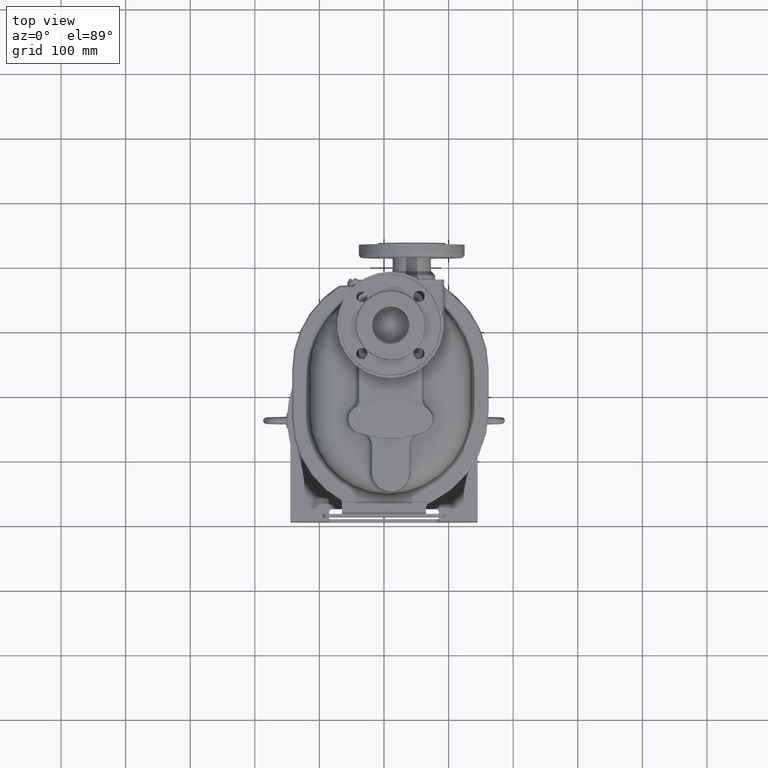
[diagram: clean part render]
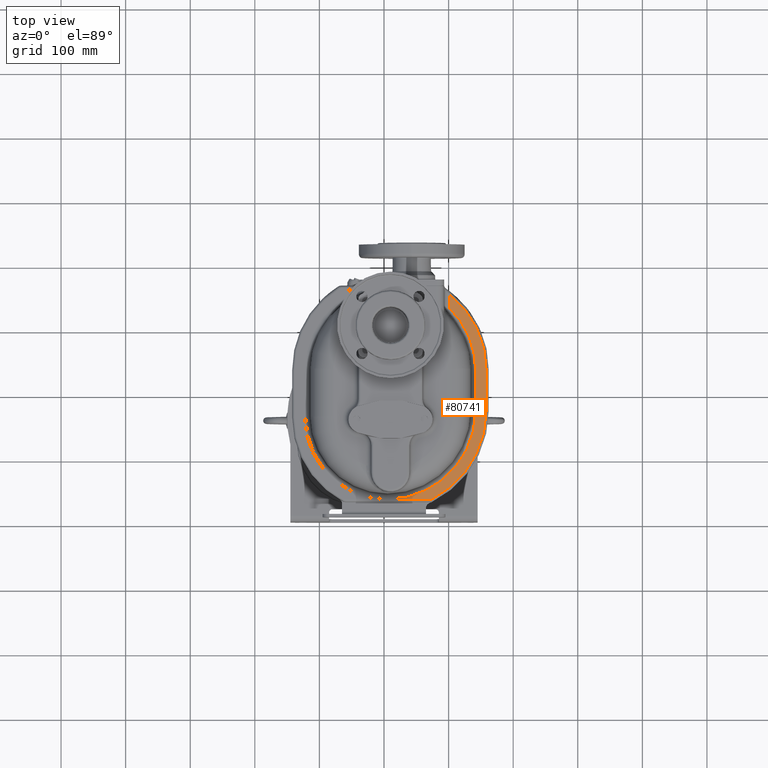
[diagram: same view with one face highlighted and labeled with its STEP entity id]
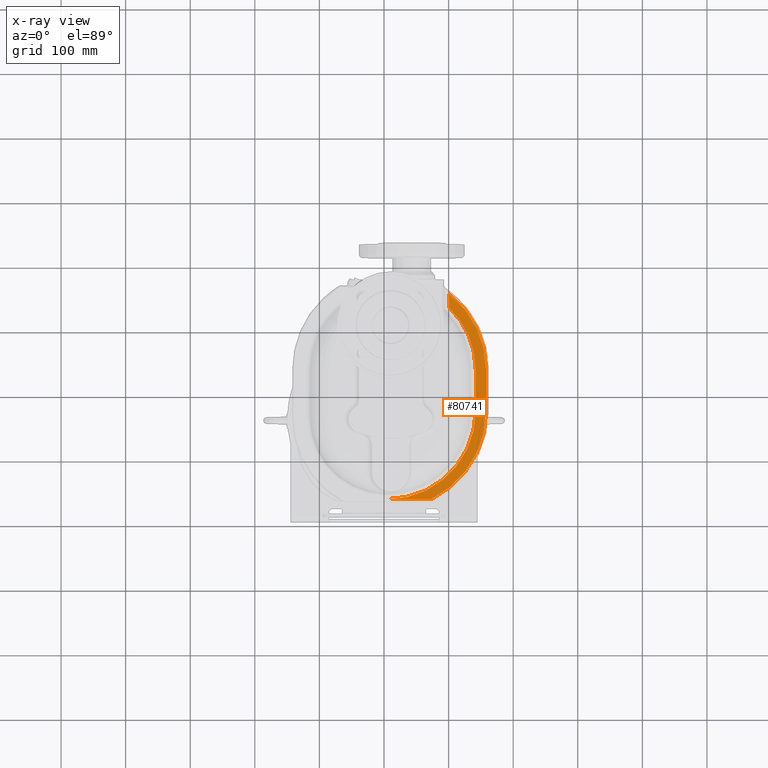
[diagram: x-ray of the same camera — body ghosted, the highlighted face saturated]
A machine part, top view. The second image highlights one B-rep face of the part: STEP entity #80741.
The next image is the same camera in x-ray: the body ghosted, the highlighted face saturated — about 0% of this face is hidden behind the body in this view.
In plain terms, the highlighted planar face has unit normal (0, 0, -1).
Its self-contained STEP definition (entity closure, byte-faithful):
#23796=DIRECTION('',(1.E0,0.E0,0.E0));
#23797=VECTOR('',#23796,6.717142249499E1);
#23798=CARTESIAN_POINT('',(4.999999999999E0,2.8E1,-1.35E1));
#23799=LINE('',#23798,#23797);
#23800=CARTESIAN_POINT('',(5.E0,1.65E2,-1.35E1));
#23801=DIRECTION('',(0.E0,0.E0,1.E0));
#23802=DIRECTION('',(0.E0,-1.E0,0.E0));
#23803=AXIS2_PLACEMENT_3D('',#23800,#23801,#23802);
#23805=DIRECTION('',(0.E0,1.E0,0.E0));
#23806=VECTOR('',#23805,6.4E1);
#23807=CARTESIAN_POINT('',(1.42E2,1.65E2,-1.35E1));
#23808=LINE('',#23807,#23806);
#23809=CARTESIAN_POINT('',(1.E1,2.29E2,-1.35E1));
#23810=DIRECTION('',(0.E0,0.E0,1.E0));
#23811=DIRECTION('',(1.E0,0.E0,0.E0));
#23812=AXIS2_PLACEMENT_3D('',#23809,#23810,#23811);
#23814=DIRECTION('',(0.E0,1.E0,0.E0));
#23815=VECTOR('',#23814,2.109857216443E1);
#23816=CARTESIAN_POINT('',(1.01E2,3.246190357617E2,-1.35E1));
#23817=LINE('',#23816,#23815);
#23818=CARTESIAN_POINT('',(1.E1,2.29E2,-1.35E1));
#23819=DIRECTION('',(0.E0,0.E0,1.E0));
#23820=DIRECTION('',(1.E0,0.E0,0.E0));
#23821=AXIS2_PLACEMENT_3D('',#23818,#23819,#23820);
#23823=DIRECTION('',(0.E0,1.E0,0.E0));
#23824=VECTOR('',#23823,6.4E1);
#23825=CARTESIAN_POINT('',(1.58E2,1.65E2,-1.35E1));
#23826=LINE('',#23825,#23824);
#23827=CARTESIAN_POINT('',(5.E0,1.65E2,-1.35E1));
#23828=DIRECTION('',(0.E0,0.E0,1.E0));
#23829=DIRECTION('',(4.508149160737E-1,-8.926174496644E-1,0.E0));
#23830=AXIS2_PLACEMENT_3D('',#23827,#23828,#23829);
#23832=CARTESIAN_POINT('',(7.217142249499E1,3.2E1,-1.35E1));
#23833=DIRECTION('',(0.E0,0.E0,1.E0));
#23834=DIRECTION('',(0.E0,-1.E0,0.E0));
#23835=AXIS2_PLACEMENT_3D('',#23832,#23833,#23834);
#25294=CARTESIAN_POINT('',(1.01E2,3.457176079261E2,-1.35E1));
#41847=CARTESIAN_POINT('',(4.999999999999E0,2.8E1,-1.35E1));
#41848=VERTEX_POINT('',#41847);
#41873=CARTESIAN_POINT('',(1.42E2,2.29E2,-1.35E1));
#41874=CARTESIAN_POINT('',(1.01E2,3.246190357617E2,-1.35E1));
#41875=VERTEX_POINT('',#41873);
#41876=VERTEX_POINT('',#41874);
#41877=CARTESIAN_POINT('',(1.42E2,1.65E2,-1.35E1));
#41878=VERTEX_POINT('',#41877);
#41883=VERTEX_POINT('',#25294);
#41885=CARTESIAN_POINT('',(1.58E2,2.29E2,-1.35E1));
#41886=VERTEX_POINT('',#41885);
#41889=CARTESIAN_POINT('',(1.58E2,1.65E2,-1.35E1));
#41890=VERTEX_POINT('',#41889);
#41893=CARTESIAN_POINT('',(7.397468215928E1,2.842953020134E1,-1.35E1));
#41894=VERTEX_POINT('',#41893);
#41897=CARTESIAN_POINT('',(7.217142249499E1,2.8E1,-1.35E1));
#41898=VERTEX_POINT('',#41897);
#80717=CARTESIAN_POINT('',(0.E0,1.6E2,-1.35E1));
#80718=DIRECTION('',(0.E0,0.E0,-1.E0));
#80719=DIRECTION('',(-1.E0,0.E0,0.E0));
#80720=AXIS2_PLACEMENT_3D('',#80717,#80718,#80719);
#80721=PLANE('',#80720);
#80722=ORIENTED_EDGE('',*,*,#80706,.F.);
#80724=ORIENTED_EDGE('',*,*,#80723,.T.);
#80726=ORIENTED_EDGE('',*,*,#80725,.T.);
#80728=ORIENTED_EDGE('',*,*,#80727,.T.);
#80730=ORIENTED_EDGE('',*,*,#80729,.T.);
#80732=ORIENTED_EDGE('',*,*,#80731,.F.);
#80734=ORIENTED_EDGE('',*,*,#80733,.F.);
#80736=ORIENTED_EDGE('',*,*,#80735,.F.);
#80738=ORIENTED_EDGE('',*,*,#80737,.F.);
#80739=EDGE_LOOP('',(#80722,#80724,#80726,#80728,#80730,#80732,#80734,#80736,
#80738));
#80740=FACE_OUTER_BOUND('',#80739,.F.);
#80741=ADVANCED_FACE('',(#80740),#80721,.F.);
#23804=CIRCLE('',#23803,1.37E2);
#23813=CIRCLE('',#23812,1.32E2);
#23822=CIRCLE('',#23821,1.48E2);
#23831=CIRCLE('',#23830,1.53E2);
#23836=CIRCLE('',#23835,4.E0);
#80706=EDGE_CURVE('',#41848,#41898,#23799,.T.);
#80723=EDGE_CURVE('',#41848,#41878,#23804,.T.);
#80725=EDGE_CURVE('',#41878,#41875,#23808,.T.);
#80727=EDGE_CURVE('',#41875,#41876,#23813,.T.);
#80729=EDGE_CURVE('',#41876,#41883,#23817,.T.);
#80731=EDGE_CURVE('',#41886,#41883,#23822,.T.);
#80733=EDGE_CURVE('',#41890,#41886,#23826,.T.);
#80735=EDGE_CURVE('',#41894,#41890,#23831,.T.);
#80737=EDGE_CURVE('',#41898,#41894,#23836,.T.);